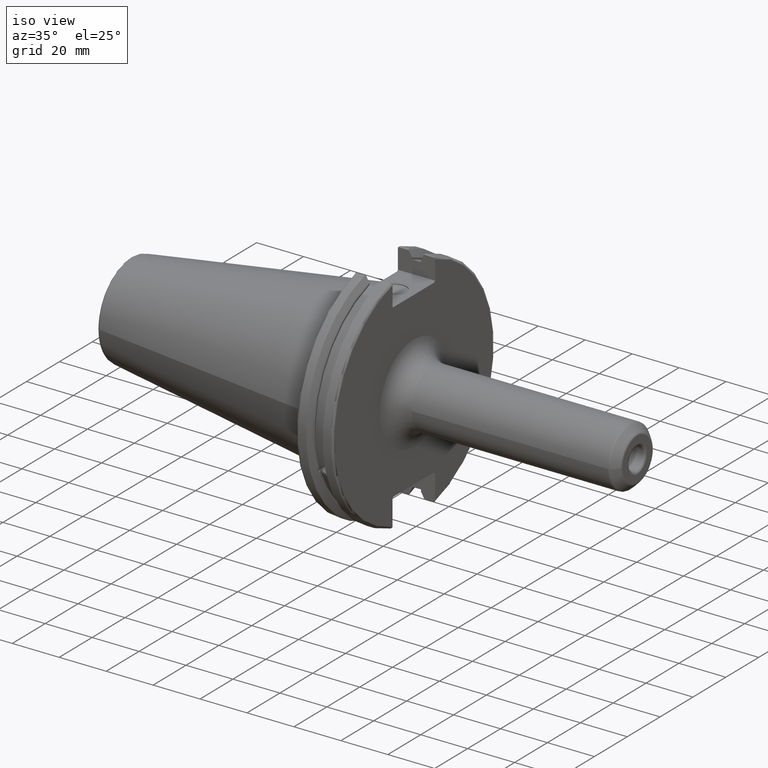
[diagram: clean part render]
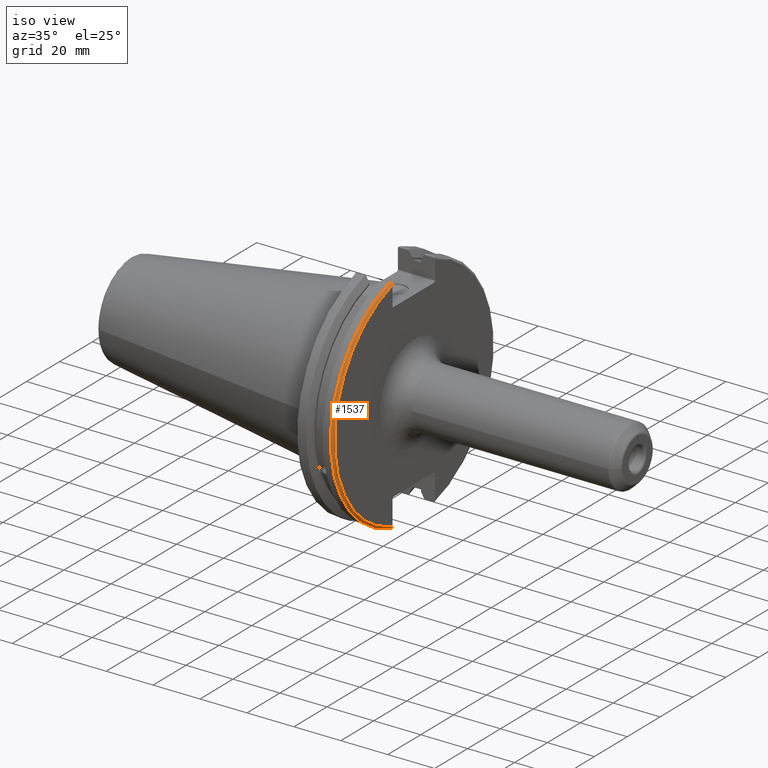
[diagram: same view with one face highlighted and labeled with its STEP entity id]
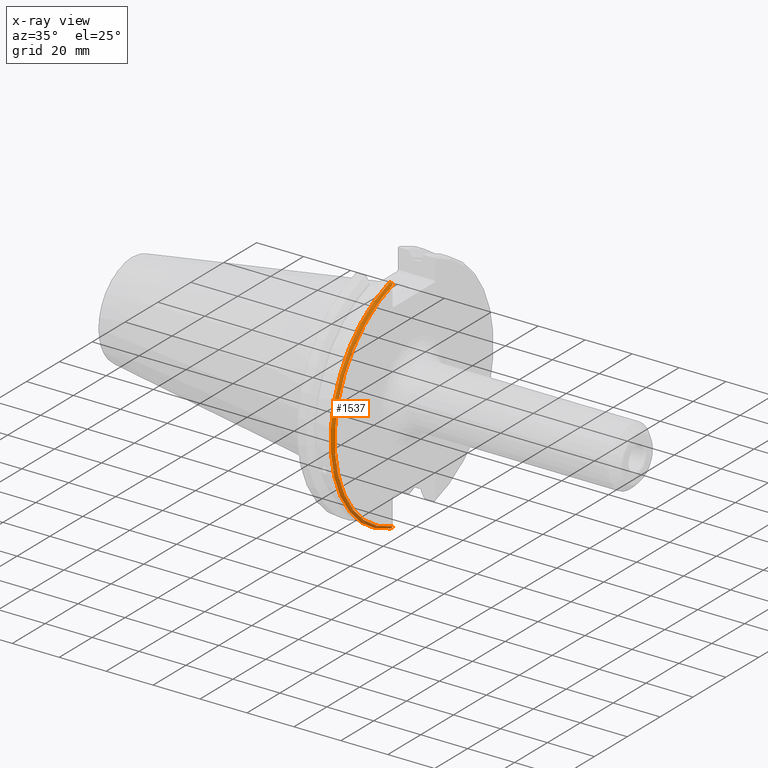
[diagram: x-ray of the same camera — body ghosted, the highlighted face saturated]
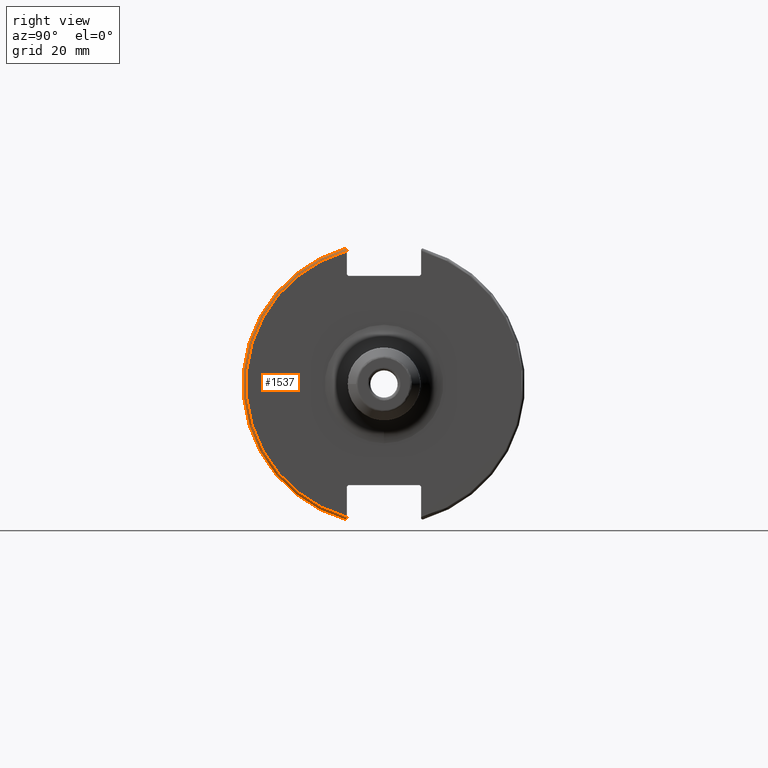
[diagram: same view with one face highlighted and labeled with its STEP entity id]
A machine part, iso view. The second image highlights one B-rep face of the part: STEP entity #1537.
The next image is the same camera in x-ray: the body ghosted, the highlighted face saturated — about 0% of this face is hidden behind the body in this view.
A second angle (right view) of the same face is appended — the face is thin or edge-on in the first view.
In plain terms, the highlighted toroidal blend (fillet) surface has major radius 48.2125 mm and minor (blend) radius 1 mm.
Its self-contained STEP definition (entity closure, byte-faithful):
#75=TOROIDAL_SURFACE('',#1706,48.2125,1.);
#122=CIRCLE('',#1634,48.2125);
#157=CIRCLE('',#1707,49.2125);
#239=FACE_OUTER_BOUND('',#344,.T.);
#344=EDGE_LOOP('',(#1267,#1268,#1269,#1270,#1271,#1272));
#604=B_SPLINE_CURVE_WITH_KNOTS('',3,(#3000,#3001,#3002,#3003,#3004,#3005),
 .UNSPECIFIED.,.F.,.F.,(4,2,4),(0.097707143645253,0.112358403262293,0.150882178076498),
 .UNSPECIFIED.);
#605=B_SPLINE_CURVE_WITH_KNOTS('',3,(#3007,#3008,#3009,#3010,#3011,#3012),
 .UNSPECIFIED.,.F.,.F.,(4,2,4),(0.452859694247731,0.491383469061936,0.506034728678978),
 .UNSPECIFIED.);
#606=B_SPLINE_CURVE_WITH_KNOTS('',3,(#3014,#3015,#3016,#3017,#3018,#3019,
#3020,#3021),.UNSPECIFIED.,.F.,.F.,(4,2,2,4),(-0.104075769062722,-0.0730268503455477,
-0.0343639873656263,0.),.UNSPECIFIED.);
#607=B_SPLINE_CURVE_WITH_KNOTS('',3,(#3024,#3025,#3026,#3027,#3028,#3029,
#3030,#3031),.UNSPECIFIED.,.F.,.F.,(4,2,2,4),(0.,0.0364336453281818,0.0778720357014993,
0.104197480645881),.UNSPECIFIED.);
#646=VERTEX_POINT('',#2424);
#647=VERTEX_POINT('',#2426);
#739=VERTEX_POINT('',#2999);
#740=VERTEX_POINT('',#3006);
#741=VERTEX_POINT('',#3013);
#742=VERTEX_POINT('',#3022);
#811=EDGE_CURVE('',#647,#646,#122,.T.);
#933=EDGE_CURVE('',#739,#647,#604,.T.);
#934=EDGE_CURVE('',#646,#740,#605,.T.);
#935=EDGE_CURVE('',#740,#741,#606,.T.);
#936=EDGE_CURVE('',#741,#742,#157,.T.);
#937=EDGE_CURVE('',#742,#739,#607,.T.);
#1267=ORIENTED_EDGE('',*,*,#933,.T.);
#1268=ORIENTED_EDGE('',*,*,#811,.T.);
#1269=ORIENTED_EDGE('',*,*,#934,.T.);
#1270=ORIENTED_EDGE('',*,*,#935,.T.);
#1271=ORIENTED_EDGE('',*,*,#936,.T.);
#1272=ORIENTED_EDGE('',*,*,#937,.T.);
#1537=ADVANCED_FACE('',(#239),#75,.T.);
#1634=AXIS2_PLACEMENT_3D('',#2427,#1848,#1849);
#1706=AXIS2_PLACEMENT_3D('',#2998,#2045,#2046);
#1707=AXIS2_PLACEMENT_3D('',#3023,#2047,#2048);
#1848=DIRECTION('center_axis',(-1.,0.,0.));
#1849=DIRECTION('ref_axis',(0.,-1.,1.60812264967664E-16));
#2045=DIRECTION('center_axis',(1.,0.,0.));
#2046=DIRECTION('ref_axis',(0.,0.,-1.));
#2047=DIRECTION('center_axis',(1.,0.,0.));
#2048=DIRECTION('ref_axis',(0.,-1.,1.60812264967664E-16));
#2424=CARTESIAN_POINT('',(19.05,-12.95,46.4407434937254));
#2426=CARTESIAN_POINT('',(19.05,-12.95,-46.4407434937254));
#2427=CARTESIAN_POINT('Origin',(19.05,0.,0.));
#2998=CARTESIAN_POINT('Origin',(18.05,0.,0.));
#2999=CARTESIAN_POINT('',(18.9055020570566,-12.95,-46.9780755322917));
#3000=CARTESIAN_POINT('Ctrl Pts',(18.9055020570566,-12.95,-46.9780755322917));
#3001=CARTESIAN_POINT('Ctrl Pts',(18.9322353702005,-12.95,-46.9322596399785));
#3002=CARTESIAN_POINT('Ctrl Pts',(18.9549831813775,-12.95,-46.8849952622217));
#3003=CARTESIAN_POINT('Ctrl Pts',(19.0209992543299,-12.95,-46.7204975987179));
#3004=CARTESIAN_POINT('Ctrl Pts',(19.05,-12.95,-46.5691560764394));
#3005=CARTESIAN_POINT('Ctrl Pts',(19.05,-12.95,-46.4407434937254));
#3006=CARTESIAN_POINT('',(18.9055020570566,-12.95,46.9780755322918));
#3007=CARTESIAN_POINT('Ctrl Pts',(19.05,-12.95,46.4407434937254));
#3008=CARTESIAN_POINT('Ctrl Pts',(19.05,-12.95,46.5691560764394));
#3009=CARTESIAN_POINT('Ctrl Pts',(19.0209992543299,-12.95,46.7204975987179));
#3010=CARTESIAN_POINT('Ctrl Pts',(18.9549831813775,-12.95,46.8849952622217));
#3011=CARTESIAN_POINT('Ctrl Pts',(18.9322353702005,-12.95,46.9322596399785));
#3012=CARTESIAN_POINT('Ctrl Pts',(18.9055020570566,-12.95,46.9780755322918));
#3013=CARTESIAN_POINT('',(18.05,-13.4317035994433,47.3440544806494));
#3014=CARTESIAN_POINT('Ctrl Pts',(18.9055020570566,-12.95,46.9780755322918));
#3015=CARTESIAN_POINT('Ctrl Pts',(18.8571496772125,-13.0300321736484,47.0388807469102));
#3016=CARTESIAN_POINT('Ctrl Pts',(18.792640282015,-13.1083611826073,47.0983919657547));
#3017=CARTESIAN_POINT('Ctrl Pts',(18.6399248789208,-13.2478194810695,47.2043467509586));
#3018=CARTESIAN_POINT('Ctrl Pts',(18.5186188350904,-13.3242014686233,47.2623787015413));
#3019=CARTESIAN_POINT('Ctrl Pts',(18.2983889675417,-13.4067722493645,47.3251126473446));
#3020=CARTESIAN_POINT('Ctrl Pts',(18.1645466245521,-13.4317035994433,47.3440544806494));
#3021=CARTESIAN_POINT('Ctrl Pts',(18.05,-13.4317035994433,47.3440544806494));
#3022=CARTESIAN_POINT('',(18.05,-13.4317035994433,-47.3440544806494));
#3023=CARTESIAN_POINT('Origin',(18.05,0.,0.));
#3024=CARTESIAN_POINT('Ctrl Pts',(18.05,-13.4317035994433,-47.3440544806494));
#3025=CARTESIAN_POINT('Ctrl Pts',(18.1714454844273,-13.4317035994433,-47.3440544806494));
#3026=CARTESIAN_POINT('Ctrl Pts',(18.3128758164404,-13.4037095171132,-47.3227857070233));
#3027=CARTESIAN_POINT('Ctrl Pts',(18.54495745946,-13.3111366376071,-47.2524525703658));
#3028=CARTESIAN_POINT('Ctrl Pts',(18.6710431007969,-13.2254637570201,-47.1873617743322));
#3029=CARTESIAN_POINT('Ctrl Pts',(18.811782280389,-13.0847856162862,-47.0804802022157));
#3030=CARTESIAN_POINT('Ctrl Pts',(18.8641312352177,-13.0184763978125,-47.0301011349397));
#3031=CARTESIAN_POINT('Ctrl Pts',(18.9055020570566,-12.95,-46.9780755322917));